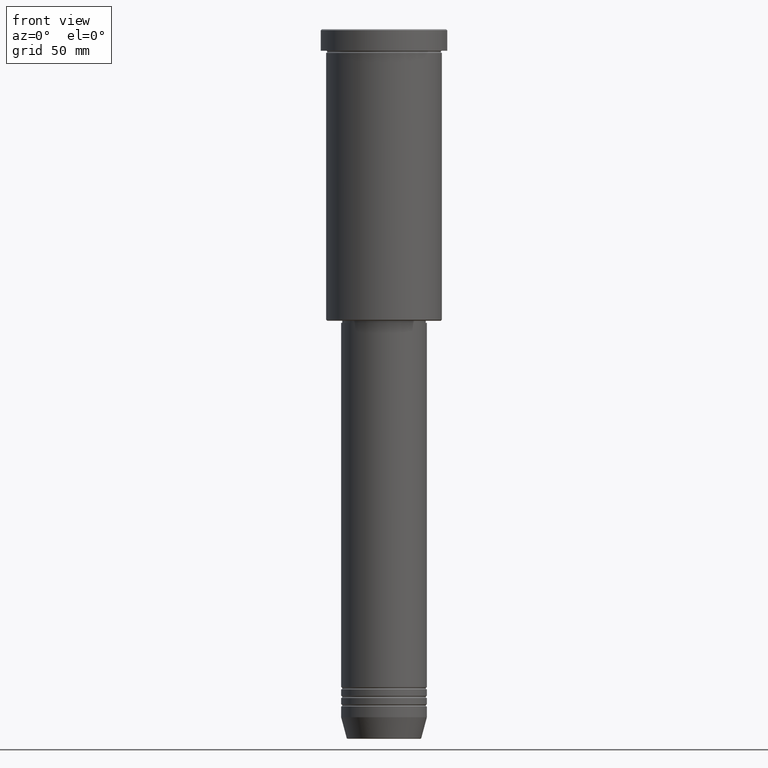
[diagram: clean part render]
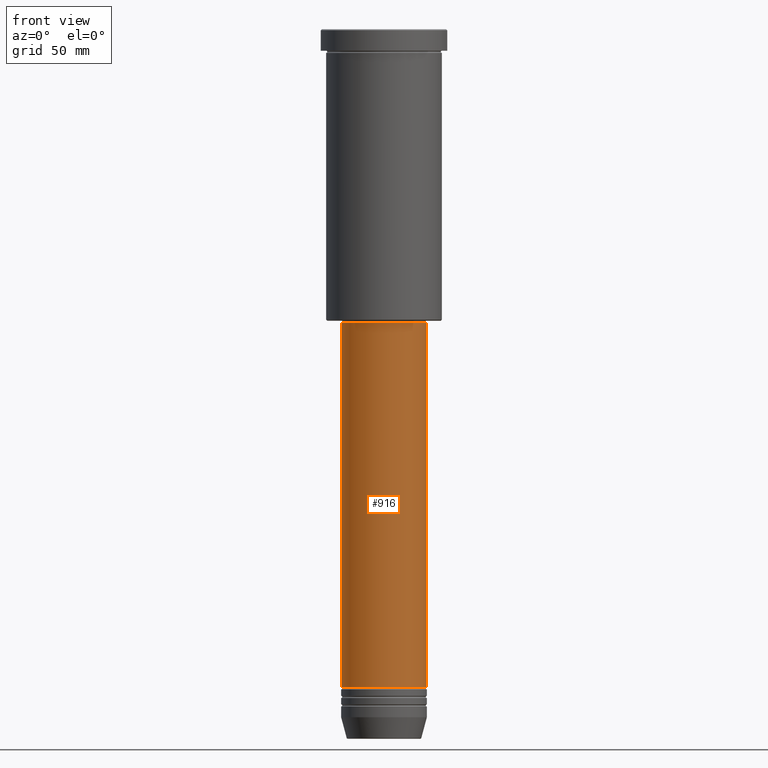
[diagram: same view with one face highlighted and labeled with its STEP entity id]
A machine part, front view. The second image highlights one B-rep face of the part: STEP entity #916.
In plain terms, the highlighted cylindrical surface (partial cylindrical patch) has radius 20 mm, axis along (-0, -0, 1).
Its self-contained STEP definition (entity closure, byte-faithful):
#9 = CARTESIAN_POINT ( 'NONE',  ( 19.99999999999999645, 0.000000000000000000, -136.9999999999999147 ) ) ;
#52 = AXIS2_PLACEMENT_3D ( 'NONE', #102, #263, #1168 ) ;
#87 = CARTESIAN_POINT ( 'NONE',  ( 20.00000000000000000, 0.000000000000000000, -306.9999999999999432 ) ) ;
#102 = CARTESIAN_POINT ( 'NONE',  ( 0.000000000000000000, 0.000000000000000000, -136.9999999999999147 ) ) ;
#113 = CIRCLE ( 'NONE', #52, 19.99999999999999645 ) ;
#135 = EDGE_CURVE ( 'NONE', #1107, #327, #918, .T. ) ;
#170 = EDGE_CURVE ( 'NONE', #327, #1115, #113, .T. ) ;
#185 = CARTESIAN_POINT ( 'NONE',  ( 0.000000000000000000, 0.000000000000000000, 0.000000000000000000 ) ) ;
#260 = DIRECTION ( 'NONE',  ( -0.000000000000000000, -0.000000000000000000, 1.000000000000000000 ) ) ;
#263 = DIRECTION ( 'NONE',  ( -0.000000000000000000, -0.000000000000000000, 1.000000000000000000 ) ) ;
#270 = AXIS2_PLACEMENT_3D ( 'NONE', #1072, #260, #339 ) ;
#311 = VECTOR ( 'NONE', #394, 1000.000000000000000 ) ;
#327 = VERTEX_POINT ( 'NONE', #384 ) ;
#339 = DIRECTION ( 'NONE',  ( 1.000000000000000000, 0.000000000000000000, 0.000000000000000000 ) ) ;
#384 = CARTESIAN_POINT ( 'NONE',  ( -19.99999999999999645, 2.449293598294706119E-15, -136.9999999999999147 ) ) ;
#394 = DIRECTION ( 'NONE',  ( -0.000000000000000000, -0.000000000000000000, 1.000000000000000000 ) ) ;
#414 = CIRCLE ( 'NONE', #270, 20.00000000000000000 ) ;
#461 = LINE ( 'NONE', #1089, #555 ) ;
#474 = CARTESIAN_POINT ( 'NONE',  ( -19.99999999999999645, 2.449293598294706119E-15, 0.000000000000000000 ) ) ;
#489 = EDGE_LOOP ( 'NONE', ( #546, #1145, #987, #1112 ) ) ;
#535 = DIRECTION ( 'NONE',  ( -0.000000000000000000, -0.000000000000000000, 1.000000000000000000 ) ) ;
#546 = ORIENTED_EDGE ( 'NONE', *, *, #135, .F. ) ;
#555 = VECTOR ( 'NONE', #1014, 1000.000000000000000 ) ;
#651 = CARTESIAN_POINT ( 'NONE',  ( -20.00000000000000000, 2.449293598294706513E-15, -306.9999999999999432 ) ) ;
#719 = EDGE_CURVE ( 'NONE', #731, #1115, #461, .T. ) ;
#727 = FACE_OUTER_BOUND ( 'NONE', #489, .T. ) ;
#731 = VERTEX_POINT ( 'NONE', #87 ) ;
#916 = ADVANCED_FACE ( 'NONE', ( #727 ), #988, .T. ) ;
#918 = LINE ( 'NONE', #474, #311 ) ;
#987 = ORIENTED_EDGE ( 'NONE', *, *, #719, .T. ) ;
#988 = CYLINDRICAL_SURFACE ( 'NONE', #1099, 19.99999999999999645 ) ;
#1014 = DIRECTION ( 'NONE',  ( -0.000000000000000000, -0.000000000000000000, 1.000000000000000000 ) ) ;
#1067 = DIRECTION ( 'NONE',  ( 1.000000000000000000, 0.000000000000000000, 0.000000000000000000 ) ) ;
#1072 = CARTESIAN_POINT ( 'NONE',  ( 0.000000000000000000, 0.000000000000000000, -306.9999999999999432 ) ) ;
#1088 = EDGE_CURVE ( 'NONE', #1107, #731, #414, .T. ) ;
#1089 = CARTESIAN_POINT ( 'NONE',  ( 19.99999999999999645, 0.000000000000000000, 0.000000000000000000 ) ) ;
#1099 = AXIS2_PLACEMENT_3D ( 'NONE', #185, #535, #1067 ) ;
#1107 = VERTEX_POINT ( 'NONE', #651 ) ;
#1112 = ORIENTED_EDGE ( 'NONE', *, *, #170, .F. ) ;
#1115 = VERTEX_POINT ( 'NONE', #9 ) ;
#1145 = ORIENTED_EDGE ( 'NONE', *, *, #1088, .T. ) ;
#1168 = DIRECTION ( 'NONE',  ( 1.000000000000000000, 0.000000000000000000, 0.000000000000000000 ) ) ;